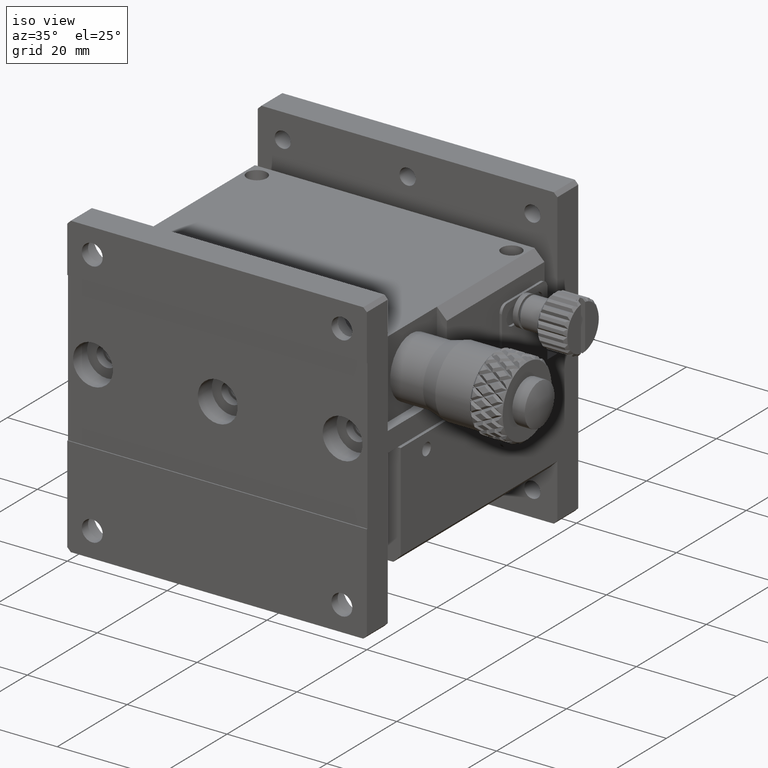
[diagram: clean part render]
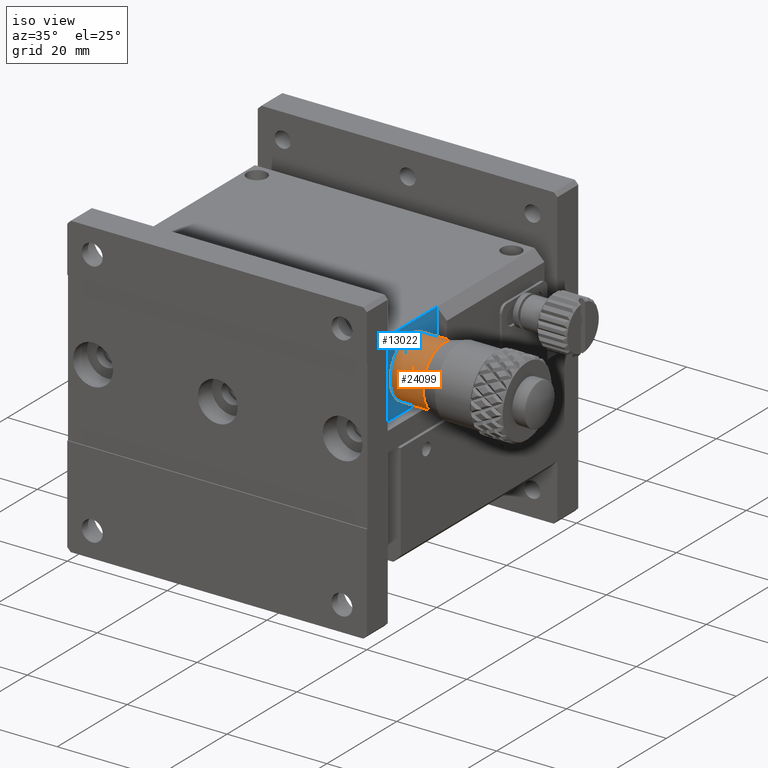
[diagram: same view with the hole feature highlighted: cylindrical wall and planar end face, labeled with their STEP entity ids]
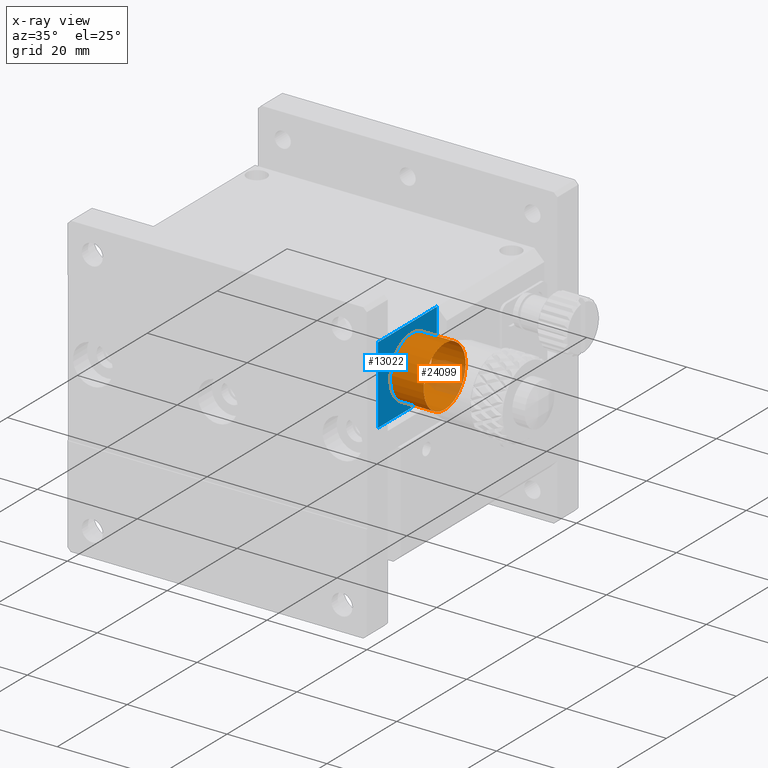
[diagram: x-ray of the same camera — body ghosted, the hole faces saturated]
A machine part, iso view. The highlighted faces form one hole feature of diameter 12 mm: the cylindrical wall (entity #24099, orange) and its adjacent planar end face (entity #13022, blue) — they share a circular edge in the B-rep.
The next image is the same camera in x-ray (body ghosted, the hole faces saturated) — the bore reads through the body.
Wall:
#563 = EDGE_LOOP ( 'NONE', ( #25970 ) ) ;
#971 = DIRECTION ( 'NONE',  ( -1.000000000000000000, -0.000000000000000000, -0.000000000000000000 ) ) ;
#1369 = DIRECTION ( 'NONE',  ( 0.000000000000000000, 0.000000000000000000, -1.000000000000000000 ) ) ;
#5981 = VERTEX_POINT ( 'NONE', #20512 ) ;
#8898 = CARTESIAN_POINT ( 'NONE',  ( 64.75000000000000000, 15.50000000000000000, -17.00000000000000000 ) ) ;
#9507 = AXIS2_PLACEMENT_3D ( 'NONE', #11920, #20508, #9800 ) ;
#9632 = AXIS2_PLACEMENT_3D ( 'NONE', #18566, #14628, #1369 ) ;
#9800 = DIRECTION ( 'NONE',  ( 0.000000000000000000, 0.000000000000000000, -1.000000000000000000 ) ) ;
#9873 = VERTEX_POINT ( 'NONE', #24814 ) ;
#10270 = ORIENTED_EDGE ( 'NONE', *, *, #19798, .T. ) ;
#10551 = EDGE_CURVE ( 'NONE', #9873, #9873, #14124, .T. ) ;
#11920 = CARTESIAN_POINT ( 'NONE',  ( 84.75067726601699292, 15.50000000000000000, -17.00000000000000000 ) ) ;
#13538 = DIRECTION ( 'NONE',  ( 0.000000000000000000, 0.000000000000000000, -1.000000000000000000 ) ) ;
#14032 = FACE_OUTER_BOUND ( 'NONE', #14864, .T. ) ;
#14124 = CIRCLE ( 'NONE', #9632, 5.999999999999998224 ) ;
#14628 = DIRECTION ( 'NONE',  ( -1.000000000000000000, -0.000000000000000000, -0.000000000000000000 ) ) ;
#14864 = EDGE_LOOP ( 'NONE', ( #10270 ) ) ;
#16003 = AXIS2_PLACEMENT_3D ( 'NONE', #8898, #971, #13538 ) ;
#16551 = CYLINDRICAL_SURFACE ( 'NONE', #9507, 5.999999999999998224 ) ;
#18566 = CARTESIAN_POINT ( 'NONE',  ( 58.00000000000000000, 15.50000000000000000, -17.00000000000000000 ) ) ;
#19798 = EDGE_CURVE ( 'NONE', #5981, #5981, #25944, .T. ) ;
#20508 = DIRECTION ( 'NONE',  ( 1.000000000000000000, 0.000000000000000000, 0.000000000000000000 ) ) ;
#20512 = CARTESIAN_POINT ( 'NONE',  ( 64.75000000000000000, 15.50000000000000000, -23.00000000000000000 ) ) ;
#24099 = ADVANCED_FACE ( 'NONE', ( #24595, #14032 ), #16551, .T. ) ;
#24595 = FACE_OUTER_BOUND ( 'NONE', #563, .T. ) ;
#24814 = CARTESIAN_POINT ( 'NONE',  ( 58.00000000000000000, 15.50000000000000000, -23.00000000000000000 ) ) ;
#25944 = CIRCLE ( 'NONE', #16003, 5.999999999999998224 ) ;
#25970 = ORIENTED_EDGE ( 'NONE', *, *, #10551, .F. ) ;
End face:
#390 = EDGE_LOOP ( 'NONE', ( #11976 ) ) ;
#1369 = DIRECTION ( 'NONE',  ( 0.000000000000000000, 0.000000000000000000, -1.000000000000000000 ) ) ;
#1403 = EDGE_CURVE ( 'NONE', #18926, #7636, #22792, .T. ) ;
#1434 = DIRECTION ( 'NONE',  ( 0.000000000000000000, 0.000000000000000000, -1.000000000000000000 ) ) ;
#1912 = CARTESIAN_POINT ( 'NONE',  ( 58.00000000000000000, 15.40000000000000036, -24.50000000000000000 ) ) ;
#2405 = EDGE_CURVE ( 'NONE', #8381, #18926, #5581, .T. ) ;
#2704 = DIRECTION ( 'NONE',  ( 0.000000000000000000, -0.000000000000000000, 1.000000000000000000 ) ) ;
#2781 = PLANE ( 'NONE',  #27381 ) ;
#3467 = DIRECTION ( 'NONE',  ( -0.000000000000000000, -0.000000000000000000, 1.000000000000000000 ) ) ;
#3846 = ORIENTED_EDGE ( 'NONE', *, *, #23140, .T. ) ;
#4966 = CIRCLE ( 'NONE', #26171, 7.500000000000009770 ) ;
#5272 = VECTOR ( 'NONE', #23343, 1000.000000000000000 ) ;
#5432 = DIRECTION ( 'NONE',  ( -0.000000000000000000, -1.000000000000000000, -0.000000000000000000 ) ) ;
#5482 = ORIENTED_EDGE ( 'NONE', *, *, #2405, .T. ) ;
#5581 = LINE ( 'NONE', #14211, #17131 ) ;
#7636 = VERTEX_POINT ( 'NONE', #18950 ) ;
#7642 = CARTESIAN_POINT ( 'NONE',  ( 58.00000000000000000, 22.89999999999999858, -9.000000000000001776 ) ) ;
#7718 = FACE_OUTER_BOUND ( 'NONE', #27241, .T. ) ;
#8199 = ORIENTED_EDGE ( 'NONE', *, *, #13380, .T. ) ;
#8381 = VERTEX_POINT ( 'NONE', #13762 ) ;
#9218 = LINE ( 'NONE', #15407, #20842 ) ;
#9442 = VERTEX_POINT ( 'NONE', #12684 ) ;
#9632 = AXIS2_PLACEMENT_3D ( 'NONE', #18566, #14628, #1369 ) ;
#9702 = FACE_BOUND ( 'NONE', #390, .T. ) ;
#9873 = VERTEX_POINT ( 'NONE', #24814 ) ;
#10041 = CARTESIAN_POINT ( 'NONE',  ( 58.00000000000000000, 15.40000000000000036, -17.00000000000000000 ) ) ;
#10551 = EDGE_CURVE ( 'NONE', #9873, #9873, #14124, .T. ) ;
#11976 = ORIENTED_EDGE ( 'NONE', *, *, #10551, .T. ) ;
#12684 = CARTESIAN_POINT ( 'NONE',  ( 58.00000000000000000, 6.000000000000000000, -24.50000000000000000 ) ) ;
#13022 = ADVANCED_FACE ( 'NONE', ( #7718, #9702 ), #2781, .T. ) ;
#13166 = ORIENTED_EDGE ( 'NONE', *, *, #27722, .F. ) ;
#13380 = EDGE_CURVE ( 'NONE', #9442, #21283, #22905, .T. ) ;
#13663 = DIRECTION ( 'NONE',  ( 1.000000000000000000, 0.000000000000000000, 0.000000000000000000 ) ) ;
#13762 = CARTESIAN_POINT ( 'NONE',  ( 58.00000000000000000, 22.89999999999999858, -17.00000000000000000 ) ) ;
#14124 = CIRCLE ( 'NONE', #9632, 5.999999999999998224 ) ;
#14211 = CARTESIAN_POINT ( 'NONE',  ( 58.00000000000000000, 22.89999999999999858, -17.00000000000000000 ) ) ;
#14628 = DIRECTION ( 'NONE',  ( -1.000000000000000000, -0.000000000000000000, -0.000000000000000000 ) ) ;
#14736 = CARTESIAN_POINT ( 'NONE',  ( 58.00000000000000000, 15.40000000000000036, -24.50000000000000000 ) ) ;
#15407 = CARTESIAN_POINT ( 'NONE',  ( 58.00000000000000000, 6.000000000000000000, 0.000000000000000000 ) ) ;
#17131 = VECTOR ( 'NONE', #3467, 1000.000000000000000 ) ;
#18566 = CARTESIAN_POINT ( 'NONE',  ( 58.00000000000000000, 15.50000000000000000, -17.00000000000000000 ) ) ;
#18926 = VERTEX_POINT ( 'NONE', #7642 ) ;
#18950 = CARTESIAN_POINT ( 'NONE',  ( 58.00000000000000000, 6.000000000000000000, -9.000000000000001776 ) ) ;
#19990 = CARTESIAN_POINT ( 'NONE',  ( 58.00000000000000000, 15.40000000000000036, -17.00000000000000000 ) ) ;
#20760 = DIRECTION ( 'NONE',  ( 1.000000000000000000, 0.000000000000000000, 0.000000000000000000 ) ) ;
#20842 = VECTOR ( 'NONE', #2704, 1000.000000000000000 ) ;
#21283 = VERTEX_POINT ( 'NONE', #1912 ) ;
#22104 = ORIENTED_EDGE ( 'NONE', *, *, #1403, .T. ) ;
#22792 = LINE ( 'NONE', #24777, #23974 ) ;
#22905 = LINE ( 'NONE', #14736, #5272 ) ;
#23140 = EDGE_CURVE ( 'NONE', #21283, #8381, #4966, .T. ) ;
#23343 = DIRECTION ( 'NONE',  ( -0.000000000000000000, 1.000000000000000000, 0.000000000000000000 ) ) ;
#23974 = VECTOR ( 'NONE', #5432, 1000.000000000000000 ) ;
#24777 = CARTESIAN_POINT ( 'NONE',  ( 58.00000000000000000, 50.79999999999999716, -9.000000000000001776 ) ) ;
#24782 = DIRECTION ( 'NONE',  ( 0.000000000000000000, 0.000000000000000000, -1.000000000000000000 ) ) ;
#24814 = CARTESIAN_POINT ( 'NONE',  ( 58.00000000000000000, 15.50000000000000000, -23.00000000000000000 ) ) ;
#26171 = AXIS2_PLACEMENT_3D ( 'NONE', #10041, #20760, #1434 ) ;
#27241 = EDGE_LOOP ( 'NONE', ( #3846, #5482, #22104, #13166, #8199 ) ) ;
#27381 = AXIS2_PLACEMENT_3D ( 'NONE', #19990, #13663, #24782 ) ;
#27722 = EDGE_CURVE ( 'NONE', #9442, #7636, #9218, .T. ) ;